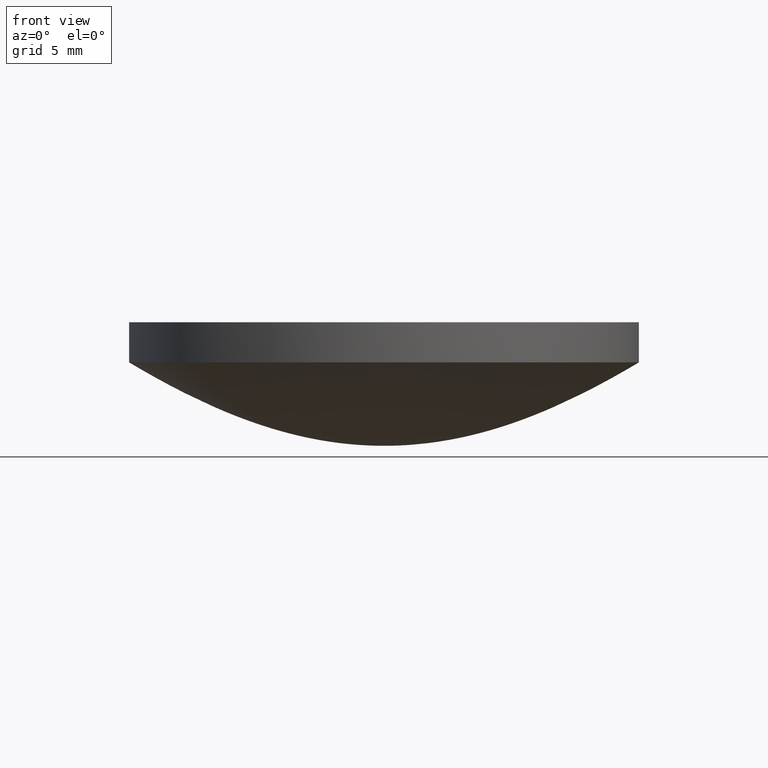
[diagram: clean part render]
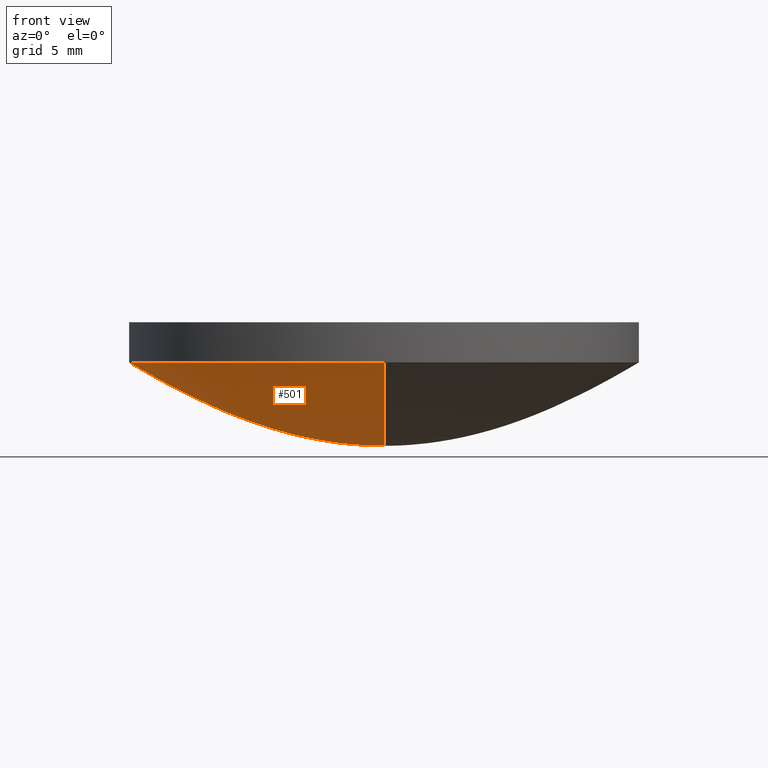
[diagram: same view with one face highlighted and labeled with its STEP entity id]
A machine part, front view. The second image highlights one B-rep face of the part: STEP entity #501.
In plain terms, the highlighted face is a freeform B-spline surface patch.
Its self-contained STEP definition (entity closure, byte-faithful):
#1 = CARTESIAN_POINT ( 'NONE',  ( 0.000000000000000000, 0.000000000000000000, 0.000000000000000000 ) ) ;
#6 = CARTESIAN_POINT ( 'NONE',  ( 0.000000000000000000, 8.299898597019639723, 1.861882940411679899 ) ) ;
#11 = CARTESIAN_POINT ( 'NONE',  ( 0.000000000000000000, 0.2648454722978469955, 0.000000000000000000 ) ) ;
#12 = DIRECTION ( 'NONE',  ( -1.000000000000000000, 0.000000000000000000, 0.000000000000000000 ) ) ;
#16 = CARTESIAN_POINT ( 'NONE',  ( 0.000000000000000000, 1.856001890975160107, 0.08818766913166510568 ) ) ;
#17 = CARTESIAN_POINT ( 'NONE',  ( 11.12995440244699985, -2.044539455041920056E-15, 3.246620217075189885 ) ) ;
#19 = CARTESIAN_POINT ( 'NONE',  ( 0.000000000000000000, 11.12995440244699985, 3.246620217075189885 ) ) ;
#21 = CARTESIAN_POINT ( 'NONE',  ( 0.000000000000000000, 8.299898597019639723, 1.861882940411679899 ) ) ;
#25 = CARTESIAN_POINT ( 'NONE',  ( 9.887190393330319793, -1.816247410162870148E-15, 2.604185921054619879 ) ) ;
#28 = CARTESIAN_POINT ( 'NONE',  ( -1.470296812679310086E-15, -12.00588458405299974, 3.743064987588899939 ) ) ;
#29 = B_SPLINE_CURVE_WITH_KNOTS ( 'NONE', 3,
 ( #217, #391, #61, #474, #229, #6, #225, #259, #354, #431, #55, #168, #348, #16, #183, #222, #512 ),
 .UNSPECIFIED., .F., .F.,
 ( 4, 1, 1, 1, 1, 1, 1, 1, 1, 1, 1, 1, 1, 1, 4 ),
 ( 0.000000000000000000, 0.1791640992132879917, 0.2231798939688300065, 0.3101165522484389814, 0.3530374157725050255, 0.4378003480766050060, 0.4796424168566389978, 0.5623418750578970116, 0.6031992644791219771, 0.6840973856314990220, 0.7241381173626499912, 0.8036349153197349660, 0.8430909815456679723, 0.9412735238857999898, 1.000000000000000000 ),
 .UNSPECIFIED. ) ;
#31 = CARTESIAN_POINT ( 'NONE',  ( 1.856001890975160107, -1.856001890975160107, 0.08818766913166510568 ) ) ;
#33 = CARTESIAN_POINT ( 'NONE',  ( -6.274022469804369679E-16, -5.123128133085059766, 0.7216723207957019826 ) ) ;
#36 = CIRCLE ( 'NONE', #268, 12.70000000000000284 ) ;
#37 = CARTESIAN_POINT ( 'NONE',  ( -4.417324537593410483, -4.417324537593410483, 0.5366860796835699610 ) ) ;
#39 = CARTESIAN_POINT ( 'NONE',  ( 0.000000000000000000, 5.123128133085059766, 0.7216723207957019826 ) ) ;
#41 = CARTESIAN_POINT ( 'NONE',  ( 3.533643029350660214, -6.491196937835459556E-16, 0.3426028526766399795 ) ) ;
#43 = CARTESIAN_POINT ( 'NONE',  ( -0.2648454722978469955, 1.621710799591140068E-17, 0.000000000000000000 ) ) ;
#44 = CARTESIAN_POINT ( 'NONE',  ( -1.210831606775240060E-15, -9.887190393330319793, 2.604185921054619879 ) ) ;
#55 = CARTESIAN_POINT ( 'NONE',  ( 0.000000000000000000, 4.417324537593409595, 0.5366860796835699610 ) ) ;
#57 = CARTESIAN_POINT ( 'NONE',  ( 0.000000000000000000, 0.000000000000000000, 0.000000000000000000 ) ) ;
#60 = CARTESIAN_POINT ( 'NONE',  ( -7.594569092104750396, 4.650332364774750375E-16, 1.566951937993940058 ) ) ;
#61 = CARTESIAN_POINT ( 'NONE',  ( 0.000000000000000000, 11.12995440244699985, 3.246620217075189885 ) ) ;
#63 = CARTESIAN_POINT ( 'NONE',  ( -1.124479035992150024E-15, -9.182068142219090845, 2.261185621592610051 ) ) ;
#65 = CARTESIAN_POINT ( 'NONE',  ( 9.887190393330319793, -9.887190393330330451, 2.604185921054619879 ) ) ;
#68 = CARTESIAN_POINT ( 'NONE',  ( 7.594569092104750396, -1.395099709432420083E-15, 1.566951937993940058 ) ) ;
#71 = CARTESIAN_POINT ( 'NONE',  ( -7.594569092104739738, 7.594569092104751284, 1.566951937993940058 ) ) ;
#73 = CARTESIAN_POINT ( 'NONE',  ( -5.123128133085059766, 3.137011234902189770E-16, 0.7216723207957019826 ) ) ;
#75 = CARTESIAN_POINT ( 'NONE',  ( -6.006328210829879666, 3.677815309010630601E-16, 0.9889388138680189622 ) ) ;
#77 = CARTESIAN_POINT ( 'NONE',  ( -2.827615954408220222, -2.827615954408220222, 0.2175848550245449986 ) ) ;
#81 = CARTESIAN_POINT ( 'NONE',  ( 5.123128133085059766, -9.411033704706559450E-16, 0.7216723207957019826 ) ) ;
#83 = VERTEX_POINT ( 'NONE', #523 ) ;
#84 = CARTESIAN_POINT ( 'NONE',  ( 3.533643029350660214, -3.533643029350660214, 0.3426028526766399240 ) ) ;
#89 = CARTESIAN_POINT ( 'NONE',  ( 0.000000000000000000, 0.000000000000000000, 0.000000000000000000 ) ) ;
#91 = CARTESIAN_POINT ( 'NONE',  ( -3.243421599182280136E-17, -0.2648454722978469955, 0.000000000000000000 ) ) ;
#92 = CARTESIAN_POINT ( 'NONE',  ( 1.734723475976807094E-15, -1.345898117247522881E-15, 4.156662013466060124 ) ) ;
#98 = CARTESIAN_POINT ( 'NONE',  ( -12.69999999999999929, 12.69999999999999929, 4.156662013466060124 ) ) ;
#100 = CARTESIAN_POINT ( 'NONE',  ( -6.711891333844019591, 6.711891333844019591, 1.230882758733029991 ) ) ;
#101 = EDGE_LOOP ( 'NONE', ( #254, #484, #121, #477 ) ) ;
#103 = CARTESIAN_POINT ( 'NONE',  ( -11.12995440244699985, -11.12995440244699985, 3.246620217075190773 ) ) ;
#105 = CARTESIAN_POINT ( 'NONE',  ( -11.12995440244699985, 11.12995440244699985, 3.246620217075190773 ) ) ;
#109 = CARTESIAN_POINT ( 'NONE',  ( -9.300664729549500750E-16, -7.594569092104750396, 1.566951937993940058 ) ) ;
#112 = CARTESIAN_POINT ( 'NONE',  ( 8.299898597019639723, 8.299898597019639723, 1.861882940411679899 ) ) ;
#114 = EDGE_CURVE ( 'NONE', #468, #83, #29, .T. ) ;
#115 = CARTESIAN_POINT ( 'NONE',  ( 2.827615954408220222, 2.827615954408220222, 0.2175848550245449986 ) ) ;
#117 = CARTESIAN_POINT ( 'NONE',  ( -0.9732602550666409336, 0.9732602550666409336, 0.01582297156970260271 ) ) ;
#119 = CARTESIAN_POINT ( 'NONE',  ( -4.417324537593410483, 4.417324537593410483, 0.5366860796835699610 ) ) ;
#121 = ORIENTED_EDGE ( 'NONE', *, *, #394, .T. ) ;
#122 = CARTESIAN_POINT ( 'NONE',  ( -0.9732602550666409336, -0.9732602550666409336, 0.01582297156970260271 ) ) ;
#124 = VERTEX_POINT ( 'NONE', #130 ) ;
#125 = CARTESIAN_POINT ( 'NONE',  ( 0.000000000000000000, 4.417324537593409595, 0.5366860796835699610 ) ) ;
#127 = CARTESIAN_POINT ( 'NONE',  ( -0.2648454722978469955, 0.2648454722978469955, 0.000000000000000000 ) ) ;
#129 = CARTESIAN_POINT ( 'NONE',  ( -3.243421599182280136E-17, -0.2648454722978469955, 0.000000000000000000 ) ) ;
#130 = CARTESIAN_POINT ( 'NONE',  ( -1.555301434917141588E-15, -12.70000000000000462, 4.156662013466060124 ) ) ;
#138 = DIRECTION ( 'NONE',  ( -0.000000000000000000, -0.000000000000000000, -1.000000000000000000 ) ) ;
#143 = CARTESIAN_POINT ( 'NONE',  ( 8.299898597019639723, -8.299898597019639723, 1.861882940411679899 ) ) ;
#145 = CARTESIAN_POINT ( 'NONE',  ( -9.887190393330319793, 9.887190393330319793, 2.604185921054619879 ) ) ;
#147 = CARTESIAN_POINT ( 'NONE',  ( -8.299898597019639723, 5.082222125043859669E-16, 1.861882940411679899 ) ) ;
#150 = CARTESIAN_POINT ( 'NONE',  ( 11.12995440244710110, 11.12995440244699985, 3.246620217075190773 ) ) ;
#153 = CARTESIAN_POINT ( 'NONE',  ( -7.594569092104751284, -7.594569092104739738, 1.566951937993940058 ) ) ;
#155 = CARTESIAN_POINT ( 'NONE',  ( 1.856001890975160107, 1.856001890975160107, 0.08818766913166510568 ) ) ;
#158 = CARTESIAN_POINT ( 'NONE',  ( 6.711891333844019591, -1.232954435732540021E-15, 1.230882758733029991 ) ) ;
#161 = CARTESIAN_POINT ( 'NONE',  ( -3.533643029350660214, 3.533643029350660214, 0.3426028526766399240 ) ) ;
#163 = CARTESIAN_POINT ( 'NONE',  ( -7.355630618021261203E-16, -6.006328210829879666, 0.9889388138680189622 ) ) ;
#167 = CARTESIAN_POINT ( 'NONE',  ( -2.272946774994159840E-16, -1.856001890975160107, 0.08818766913166510568 ) ) ;
#168 = CARTESIAN_POINT ( 'NONE',  ( 0.000000000000000000, 3.533643029350660214, 0.3426028526766399795 ) ) ;
#169 = CARTESIAN_POINT ( 'NONE',  ( 0.2648454722978469955, -4.865132398773410035E-17, 0.000000000000000000 ) ) ;
#170 = CARTESIAN_POINT ( 'NONE',  ( -12.70000000000000107, 6.671230152170136933E-16, 4.156662013466060124 ) ) ;
#175 = CARTESIAN_POINT ( 'NONE',  ( -3.851859888774471706E-31, 12.70000000000000284, 4.156662013466060124 ) ) ;
#183 = CARTESIAN_POINT ( 'NONE',  ( 0.000000000000000000, 0.9732602550666410446, 0.01582297156970259924 ) ) ;
#186 = CARTESIAN_POINT ( 'NONE',  ( -12.00588458405299974, 7.351484063396529724E-16, 3.743064987588899939 ) ) ;
#188 = CARTESIAN_POINT ( 'NONE',  ( -11.12995440244699985, 6.815131516806389996E-16, 3.246620217075189885 ) ) ;
#190 = CARTESIAN_POINT ( 'NONE',  ( 0.000000000000000000, 12.00588458405299974, 3.743064987588899939 ) ) ;
#193 = CARTESIAN_POINT ( 'NONE',  ( 12.00588458405299974, -2.205445219018960396E-15, 3.743064987588899939 ) ) ;
#196 = CARTESIAN_POINT ( 'NONE',  ( 12.69999999999999929, 12.69999999999999929, 4.156662013466060124 ) ) ;
#198 = CARTESIAN_POINT ( 'NONE',  ( 1.856001890975160107, -3.409420162491239760E-16, 0.08818766913166510568 ) ) ;
#201 = CARTESIAN_POINT ( 'NONE',  ( 5.123128133085059766, -5.123128133085059766, 0.7216723207957019826 ) ) ;
#204 = CARTESIAN_POINT ( 'NONE',  ( -2.272946774994159840E-16, -1.856001890975160107, 0.08818766913166510568 ) ) ;
#206 = CARTESIAN_POINT ( 'NONE',  ( -5.123128133085059766, 5.123128133085059766, 0.7216723207957019826 ) ) ;
#208 = CARTESIAN_POINT ( 'NONE',  ( -6.006328210829880554, -6.006328210829880554, 0.9889388138680190732 ) ) ;
#211 = CARTESIAN_POINT ( 'NONE',  ( 0.000000000000000000, 0.000000000000000000, 0.000000000000000000 ) ) ;
#212 = CARTESIAN_POINT ( 'NONE',  ( -7.355630618021261203E-16, -6.006328210829879666, 0.9889388138680189622 ) ) ;
#217 = CARTESIAN_POINT ( 'NONE',  ( -3.851859888774471706E-31, 12.70000000000000284, 4.156662013466060124 ) ) ;
#221 = CARTESIAN_POINT ( 'NONE',  ( 0.000000000000000000, 12.69999999999999929, 4.156662013466060124 ) ) ;
#222 = CARTESIAN_POINT ( 'NONE',  ( 0.000000000000000000, 0.2648454722978469955, 0.000000000000000000 ) ) ;
#223 = CARTESIAN_POINT ( 'NONE',  ( 0.000000000000000000, 0.000000000000000000, 0.000000000000000000 ) ) ;
#224 = CARTESIAN_POINT ( 'NONE',  ( -8.219696238216940375E-16, -6.711891333844019591, 1.230882758733029991 ) ) ;
#225 = CARTESIAN_POINT ( 'NONE',  ( 0.000000000000000000, 7.594569092104750396, 1.566951937993940058 ) ) ;
#226 = B_SPLINE_CURVE_WITH_KNOTS ( 'NONE', 3,
 ( #519, #480, #349, #44, #473, #317, #390, #224, #212, #436, #511, #312, #357, #167, #385, #129, #89 ),
 .UNSPECIFIED., .F., .F.,
 ( 4, 1, 1, 1, 1, 1, 1, 1, 1, 1, 1, 1, 1, 1, 4 ),
 ( 0.000000000000000000, 0.1791640992132879917, 0.2231798939688300065, 0.3101165522484389814, 0.3530374157725050255, 0.4378003480766050060, 0.4796424168566389978, 0.5623418750578970116, 0.6031992644791219771, 0.6840973856314990220, 0.7241381173626499912, 0.8036349153197349660, 0.8430909815456679723, 0.9412735238857999898, 1.000000000000000000 ),
 .UNSPECIFIED. ) ;
#228 = CARTESIAN_POINT ( 'NONE',  ( 12.69999999999999929, -2.332952152375710015E-15, 4.156662013466060124 ) ) ;
#229 = CARTESIAN_POINT ( 'NONE',  ( 0.000000000000000000, 9.182068142219090845, 2.261185621592610051 ) ) ;
#232 = CARTESIAN_POINT ( 'NONE',  ( -8.299898597019639723, 8.299898597019639723, 1.861882940411679899 ) ) ;
#235 = CARTESIAN_POINT ( 'NONE',  ( 0.000000000000000000, 9.182068142219090845, 2.261185621592610051 ) ) ;
#238 = CARTESIAN_POINT ( 'NONE',  ( 0.000000000000000000, 9.887190393330319793, 2.604185921054619879 ) ) ;
#240 = CARTESIAN_POINT ( 'NONE',  ( 12.69999999999999929, -12.69999999999999929, 4.156662013466060124 ) ) ;
#242 = CARTESIAN_POINT ( 'NONE',  ( 0.000000000000000000, 1.856001890975160107, 0.08818766913166510568 ) ) ;
#244 = CARTESIAN_POINT ( 'NONE',  ( 5.123128133085059766, 5.123128133085059766, 0.7216723207957019826 ) ) ;
#246 = CARTESIAN_POINT ( 'NONE',  ( 0.000000000000000000, 2.827615954408219778, 0.2175848550245449986 ) ) ;
#249 = CARTESIAN_POINT ( 'NONE',  ( -8.219696238216940375E-16, -6.711891333844019591, 1.230882758733029991 ) ) ;
#252 = CARTESIAN_POINT ( 'NONE',  ( 0.000000000000000000, 2.827615954408219778, 0.2175848550245449986 ) ) ;
#254 = ORIENTED_EDGE ( 'NONE', *, *, #403, .F. ) ;
#257 = CARTESIAN_POINT ( 'NONE',  ( 0.000000000000000000, 0.000000000000000000, 0.000000000000000000 ) ) ;
#259 = CARTESIAN_POINT ( 'NONE',  ( 0.000000000000000000, 6.711891333844019591, 1.230882758733029991 ) ) ;
#262 = VERTEX_POINT ( 'NONE', #170 ) ;
#263 = CARTESIAN_POINT ( 'NONE',  ( 0.9732602550666409336, 0.9732602550666409336, 0.01582297156970260271 ) ) ;
#264 = FACE_OUTER_BOUND ( 'NONE', #101, .T. ) ;
#268 = AXIS2_PLACEMENT_3D ( 'NONE', #353, #138, #12 ) ;
#269 = CARTESIAN_POINT ( 'NONE',  ( -12.69999999999999929, 7.776507174585690191E-16, 4.156662013466060124 ) ) ;
#271 = CARTESIAN_POINT ( 'NONE',  ( 12.00588458405300152, -12.00588458405300152, 3.743064987588899939 ) ) ;
#274 = CARTESIAN_POINT ( 'NONE',  ( 0.000000000000000000, 9.887190393330319793, 2.604185921054619879 ) ) ;
#278 = CARTESIAN_POINT ( 'NONE',  ( -9.887190393330330451, -9.887190393330319793, 2.604185921054619879 ) ) ;
#281 = CARTESIAN_POINT ( 'NONE',  ( 9.182068142219090845, -9.182068142219090845, 2.261185621592610051 ) ) ;
#284 = CARTESIAN_POINT ( 'NONE',  ( -9.182068142219090845, 5.622395179960750118E-16, 2.261185621592610051 ) ) ;
#286 = CARTESIAN_POINT ( 'NONE',  ( 0.000000000000000000, 6.006328210829879666, 0.9889388138680189622 ) ) ;
#288 = CARTESIAN_POINT ( 'NONE',  ( -0.9732602550666410446, 5.959500280523489629E-17, 0.01582297156970259924 ) ) ;
#290 = CARTESIAN_POINT ( 'NONE',  ( 0.000000000000000000, 3.533643029350660214, 0.3426028526766399795 ) ) ;
#292 = CARTESIAN_POINT ( 'NONE',  ( 4.417324537593410483, 4.417324537593410483, 0.5366860796835699610 ) ) ;
#297 =( BOUNDED_SURFACE ( )  B_SPLINE_SURFACE ( 3, 2, ( 
 ( #221, #98, #269, #401, #361, #240, #228, #196, #487 ),
 ( #399, #489, #186, #365, #28, #271, #193, #330, #190 ),
 ( #19, #105, #188, #103, #408, #369, #17, #150, #527 ),
 ( #238, #145, #323, #278, #447, #65, #25, #529, #274 ),
 ( #371, #450, #284, #531, #63, #281, #405, #495, #235 ),
 ( #21, #232, #147, #327, #492, #143, #359, #112, #533 ),
 ( #320, #71, #60, #153, #109, #454, #68, #524, #411 ),
 ( #483, #100, #442, #445, #249, #458, #158, #298, #375 ),
 ( #286, #373, #75, #208, #163, #504, #535, #421, #337 ),
 ( #39, #206, #73, #541, #33, #201, #81, #244, #537 ),
 ( #502, #119, #379, #37, #335, #332, #381, #292, #125 ),
 ( #342, #161, #506, #466, #377, #84, #41, #544, #290 ),
 ( #252, #460, #497, #77, #415, #423, #339, #115, #246 ),
 ( #242, #456, #413, #418, #204, #31, #198, #155, #539 ),
 ( #499, #117, #288, #122, #463, #305, #439, #263, #393 ),
 ( #429, #127, #43, #425, #91, #384, #169, #352, #11 ),
 ( #300, #470, #223, #386, #211, #57, #257, #389, #1 ) ),
 .UNSPECIFIED., .F., .T., .F. ) 
 B_SPLINE_SURFACE_WITH_KNOTS ( ( 4, 1, 1, 1, 1, 1, 1, 1, 1, 1, 1, 1, 1, 1, 4 ),
 ( 3, 2, 2, 2, 3 ),
 ( 0.000000000000000000, 0.1791640992132879917, 0.2231798939688300065, 0.3101165522484389814, 0.3530374157725050255, 0.4378003480766050060, 0.4796424168566389978, 0.5623418750578970116, 0.6031992644791219771, 0.6840973856314990220, 0.7241381173626499912, 0.8036349153197349660, 0.8430909815456679723, 0.9412735238857999898, 1.000000000000000000 ),
 ( 0.000000000000000000, 90.00000000000000000, 180.0000000000000000, 270.0000000000000000, 360.0000000000000000 ),
 .UNSPECIFIED. ) 
 GEOMETRIC_REPRESENTATION_ITEM ( )  RATIONAL_B_SPLINE_SURFACE ( (
 ( 1.000000000000000000, 0.7071067811865480168, 1.000000000000000000, 0.7071067811865480168, 1.000000000000000000, 0.7071067811865480168, 1.000000000000000000, 0.7071067811865480168, 1.000000000000000000),
 ( 1.000000000000000000, 0.7071067811865480168, 1.000000000000000000, 0.7071067811865480168, 1.000000000000000000, 0.7071067811865480168, 1.000000000000000000, 0.7071067811865480168, 1.000000000000000000),
 ( 1.000000000000000000, 0.7071067811865480168, 1.000000000000000000, 0.7071067811865480168, 1.000000000000000000, 0.7071067811865480168, 1.000000000000000000, 0.7071067811865480168, 1.000000000000000000),
 ( 1.000000000000000000, 0.7071067811865480168, 1.000000000000000000, 0.7071067811865480168, 1.000000000000000000, 0.7071067811865480168, 1.000000000000000000, 0.7071067811865480168, 1.000000000000000000),
 ( 1.000000000000000000, 0.7071067811865480168, 1.000000000000000000, 0.7071067811865480168, 1.000000000000000000, 0.7071067811865480168, 1.000000000000000000, 0.7071067811865480168, 1.000000000000000000),
 ( 1.000000000000000000, 0.7071067811865480168, 1.000000000000000000, 0.7071067811865480168, 1.000000000000000000, 0.7071067811865480168, 1.000000000000000000, 0.7071067811865480168, 1.000000000000000000),
 ( 1.000000000000000000, 0.7071067811865480168, 1.000000000000000000, 0.7071067811865480168, 1.000000000000000000, 0.7071067811865480168, 1.000000000000000000, 0.7071067811865480168, 1.000000000000000000),
 ( 1.000000000000000000, 0.7071067811865480168, 1.000000000000000000, 0.7071067811865480168, 1.000000000000000000, 0.7071067811865480168, 1.000000000000000000, 0.7071067811865480168, 1.000000000000000000),
 ( 1.000000000000000000, 0.7071067811865480168, 1.000000000000000000, 0.7071067811865480168, 1.000000000000000000, 0.7071067811865480168, 1.000000000000000000, 0.7071067811865480168, 1.000000000000000000),
 ( 1.000000000000000000, 0.7071067811865480168, 1.000000000000000000, 0.7071067811865480168, 1.000000000000000000, 0.7071067811865480168, 1.000000000000000000, 0.7071067811865480168, 1.000000000000000000),
 ( 1.000000000000000000, 0.7071067811865480168, 1.000000000000000000, 0.7071067811865480168, 1.000000000000000000, 0.7071067811865480168, 1.000000000000000000, 0.7071067811865480168, 1.000000000000000000),
 ( 1.000000000000000000, 0.7071067811865480168, 1.000000000000000000, 0.7071067811865480168, 1.000000000000000000, 0.7071067811865480168, 1.000000000000000000, 0.7071067811865480168, 1.000000000000000000),
 ( 1.000000000000000000, 0.7071067811865480168, 1.000000000000000000, 0.7071067811865480168, 1.000000000000000000, 0.7071067811865480168, 1.000000000000000000, 0.7071067811865480168, 1.000000000000000000),
 ( 1.000000000000000000, 0.7071067811865480168, 1.000000000000000000, 0.7071067811865480168, 1.000000000000000000, 0.7071067811865480168, 1.000000000000000000, 0.7071067811865480168, 1.000000000000000000),
 ( 1.000000000000000000, 0.7071067811865480168, 1.000000000000000000, 0.7071067811865480168, 1.000000000000000000, 0.7071067811865480168, 1.000000000000000000, 0.7071067811865480168, 1.000000000000000000),
 ( 1.000000000000000000, 0.7071067811865480168, 1.000000000000000000, 0.7071067811865480168, 1.000000000000000000, 0.7071067811865480168, 1.000000000000000000, 0.7071067811865480168, 1.000000000000000000),
 ( 1.000000000000000000, 0.7071067811865480168, 1.000000000000000000, 0.7071067811865480168, 1.000000000000000000, 0.7071067811865480168, 1.000000000000000000, 0.7071067811865480168, 1.000000000000000000) ) ) 
 REPRESENTATION_ITEM ( '' )  SURFACE ( )  );
#298 = CARTESIAN_POINT ( 'NONE',  ( 6.711891333844019591, 6.711891333844019591, 1.230882758733029991 ) ) ;
#300 = CARTESIAN_POINT ( 'NONE',  ( 0.000000000000000000, 0.000000000000000000, 0.000000000000000000 ) ) ;
#305 = CARTESIAN_POINT ( 'NONE',  ( 0.9732602550666409336, -0.9732602550666409336, 0.01582297156970260271 ) ) ;
#312 = CARTESIAN_POINT ( 'NONE',  ( -4.327464625223639869E-16, -3.533643029350660214, 0.3426028526766399795 ) ) ;
#315 = EDGE_CURVE ( 'NONE', #124, #262, #326, .T. ) ;
#317 = CARTESIAN_POINT ( 'NONE',  ( -1.016444425008770159E-15, -8.299898597019639723, 1.861882940411679899 ) ) ;
#320 = CARTESIAN_POINT ( 'NONE',  ( 0.000000000000000000, 7.594569092104750396, 1.566951937993940058 ) ) ;
#323 = CARTESIAN_POINT ( 'NONE',  ( -9.887190393330319793, 6.054158033876220021E-16, 2.604185921054619879 ) ) ;
#326 = CIRCLE ( 'NONE', #507, 12.70000000000000284 ) ;
#327 = CARTESIAN_POINT ( 'NONE',  ( -8.299898597019639723, -8.299898597019639723, 1.861882940411679899 ) ) ;
#330 = CARTESIAN_POINT ( 'NONE',  ( 12.00588458405300152, 12.00588458405300152, 3.743064987588899939 ) ) ;
#332 = CARTESIAN_POINT ( 'NONE',  ( 4.417324537593410483, -4.417324537593410483, 0.5366860796835699610 ) ) ;
#335 = CARTESIAN_POINT ( 'NONE',  ( -5.409662355758830350E-16, -4.417324537593409595, 0.5366860796835699610 ) ) ;
#337 = CARTESIAN_POINT ( 'NONE',  ( 0.000000000000000000, 6.006328210829879666, 0.9889388138680189622 ) ) ;
#339 = CARTESIAN_POINT ( 'NONE',  ( 2.827615954408219778, -5.194246241676019827E-16, 0.2175848550245449986 ) ) ;
#342 = CARTESIAN_POINT ( 'NONE',  ( 0.000000000000000000, 3.533643029350660214, 0.3426028526766399795 ) ) ;
#348 = CARTESIAN_POINT ( 'NONE',  ( 0.000000000000000000, 2.827615954408219778, 0.2175848550245449986 ) ) ;
#349 = CARTESIAN_POINT ( 'NONE',  ( -1.363026303361279971E-15, -11.12995440244699985, 3.246620217075189885 ) ) ;
#352 = CARTESIAN_POINT ( 'NONE',  ( 0.2648454722978469955, 0.2648454722978469955, 0.000000000000000000 ) ) ;
#353 = CARTESIAN_POINT ( 'NONE',  ( 1.734723475976807094E-15, -1.345898117247522881E-15, 4.156662013466060124 ) ) ;
#354 = CARTESIAN_POINT ( 'NONE',  ( 0.000000000000000000, 6.006328210829879666, 0.9889388138680189622 ) ) ;
#357 = CARTESIAN_POINT ( 'NONE',  ( -3.462830827784010095E-16, -2.827615954408219778, 0.2175848550245449986 ) ) ;
#359 = CARTESIAN_POINT ( 'NONE',  ( 8.299898597019639723, -1.524666637513159972E-15, 1.861882940411679899 ) ) ;
#361 = CARTESIAN_POINT ( 'NONE',  ( -1.555301434917140010E-15, -12.69999999999999929, 4.156662013466060124 ) ) ;
#365 = CARTESIAN_POINT ( 'NONE',  ( -12.00588458405300152, -12.00588458405300152, 3.743064987588899939 ) ) ;
#369 = CARTESIAN_POINT ( 'NONE',  ( 11.12995440244699985, -11.12995440244710110, 3.246620217075190773 ) ) ;
#371 = CARTESIAN_POINT ( 'NONE',  ( 0.000000000000000000, 9.182068142219090845, 2.261185621592610051 ) ) ;
#373 = CARTESIAN_POINT ( 'NONE',  ( -6.006328210829880554, 6.006328210829880554, 0.9889388138680190732 ) ) ;
#375 = CARTESIAN_POINT ( 'NONE',  ( 0.000000000000000000, 6.711891333844019591, 1.230882758733029991 ) ) ;
#377 = CARTESIAN_POINT ( 'NONE',  ( -4.327464625223639869E-16, -3.533643029350660214, 0.3426028526766399795 ) ) ;
#379 = CARTESIAN_POINT ( 'NONE',  ( -4.417324537593409595, 2.704831177879420105E-16, 0.5366860796835699610 ) ) ;
#381 = CARTESIAN_POINT ( 'NONE',  ( 4.417324537593409595, -8.114493533638249962E-16, 0.5366860796835699610 ) ) ;
#384 = CARTESIAN_POINT ( 'NONE',  ( 0.2648454722978469955, -0.2648454722978469955, 0.000000000000000000 ) ) ;
#385 = CARTESIAN_POINT ( 'NONE',  ( -1.191900056104700145E-16, -0.9732602550666410446, 0.01582297156970259924 ) ) ;
#386 = CARTESIAN_POINT ( 'NONE',  ( 0.000000000000000000, 0.000000000000000000, 0.000000000000000000 ) ) ;
#389 = CARTESIAN_POINT ( 'NONE',  ( 0.000000000000000000, 0.000000000000000000, 0.000000000000000000 ) ) ;
#390 = CARTESIAN_POINT ( 'NONE',  ( -9.300664729549500750E-16, -7.594569092104750396, 1.566951937993940058 ) ) ;
#391 = CARTESIAN_POINT ( 'NONE',  ( 0.000000000000000000, 12.00588458405299974, 3.743064987588899939 ) ) ;
#393 = CARTESIAN_POINT ( 'NONE',  ( 0.000000000000000000, 0.9732602550666410446, 0.01582297156970259924 ) ) ;
#394 = EDGE_CURVE ( 'NONE', #262, #468, #36, .T. ) ;
#395 = DIRECTION ( 'NONE',  ( -1.000000000000000000, 0.000000000000000000, 0.000000000000000000 ) ) ;
#399 = CARTESIAN_POINT ( 'NONE',  ( 0.000000000000000000, 12.00588458405299974, 3.743064987588899939 ) ) ;
#401 = CARTESIAN_POINT ( 'NONE',  ( -12.69999999999999929, -12.69999999999999929, 4.156662013466060124 ) ) ;
#403 = EDGE_CURVE ( 'NONE', #124, #83, #226, .T. ) ;
#405 = CARTESIAN_POINT ( 'NONE',  ( 9.182068142219090845, -1.686718553988220006E-15, 2.261185621592610051 ) ) ;
#408 = CARTESIAN_POINT ( 'NONE',  ( -1.363026303361279971E-15, -11.12995440244699985, 3.246620217075189885 ) ) ;
#411 = CARTESIAN_POINT ( 'NONE',  ( 0.000000000000000000, 7.594569092104750396, 1.566951937993940058 ) ) ;
#413 = CARTESIAN_POINT ( 'NONE',  ( -1.856001890975160107, 1.136473387497079920E-16, 0.08818766913166510568 ) ) ;
#415 = CARTESIAN_POINT ( 'NONE',  ( -3.462830827784010095E-16, -2.827615954408219778, 0.2175848550245449986 ) ) ;
#418 = CARTESIAN_POINT ( 'NONE',  ( -1.856001890975160107, -1.856001890975160107, 0.08818766913166510568 ) ) ;
#421 = CARTESIAN_POINT ( 'NONE',  ( 6.006328210829880554, 6.006328210829870784, 0.9889388138680190732 ) ) ;
#423 = CARTESIAN_POINT ( 'NONE',  ( 2.827615954408220222, -2.827615954408220222, 0.2175848550245449986 ) ) ;
#425 = CARTESIAN_POINT ( 'NONE',  ( -0.2648454722978469955, -0.2648454722978469955, 0.000000000000000000 ) ) ;
#429 = CARTESIAN_POINT ( 'NONE',  ( 0.000000000000000000, 0.2648454722978469955, 0.000000000000000000 ) ) ;
#431 = CARTESIAN_POINT ( 'NONE',  ( 0.000000000000000000, 5.123128133085059766, 0.7216723207957019826 ) ) ;
#432 = DIRECTION ( 'NONE',  ( -0.000000000000000000, -0.000000000000000000, -1.000000000000000000 ) ) ;
#436 = CARTESIAN_POINT ( 'NONE',  ( -6.274022469804369679E-16, -5.123128133085059766, 0.7216723207957019826 ) ) ;
#439 = CARTESIAN_POINT ( 'NONE',  ( 0.9732602550666410446, -1.787850084157050094E-16, 0.01582297156970259924 ) ) ;
#442 = CARTESIAN_POINT ( 'NONE',  ( -6.711891333844019591, 4.109848119108470188E-16, 1.230882758733029991 ) ) ;
#445 = CARTESIAN_POINT ( 'NONE',  ( -6.711891333844019591, -6.711891333844019591, 1.230882758733029991 ) ) ;
#447 = CARTESIAN_POINT ( 'NONE',  ( -1.210831606775240060E-15, -9.887190393330319793, 2.604185921054619879 ) ) ;
#450 = CARTESIAN_POINT ( 'NONE',  ( -9.182068142219090845, 9.182068142219090845, 2.261185621592610051 ) ) ;
#454 = CARTESIAN_POINT ( 'NONE',  ( 7.594569092104739738, -7.594569092104751284, 1.566951937993940058 ) ) ;
#456 = CARTESIAN_POINT ( 'NONE',  ( -1.856001890975160107, 1.856001890975160107, 0.08818766913166510568 ) ) ;
#458 = CARTESIAN_POINT ( 'NONE',  ( 6.711891333844019591, -6.711891333844019591, 1.230882758733029991 ) ) ;
#460 = CARTESIAN_POINT ( 'NONE',  ( -2.827615954408220222, 2.827615954408220222, 0.2175848550245449986 ) ) ;
#463 = CARTESIAN_POINT ( 'NONE',  ( -1.191900056104700145E-16, -0.9732602550666410446, 0.01582297156970259924 ) ) ;
#466 = CARTESIAN_POINT ( 'NONE',  ( -3.533643029350660214, -3.533643029350660214, 0.3426028526766399240 ) ) ;
#468 = VERTEX_POINT ( 'NONE', #175 ) ;
#470 = CARTESIAN_POINT ( 'NONE',  ( 0.000000000000000000, 0.000000000000000000, 0.000000000000000000 ) ) ;
#473 = CARTESIAN_POINT ( 'NONE',  ( -1.124479035992150024E-15, -9.182068142219090845, 2.261185621592610051 ) ) ;
#474 = CARTESIAN_POINT ( 'NONE',  ( 0.000000000000000000, 9.887190393330319793, 2.604185921054619879 ) ) ;
#477 = ORIENTED_EDGE ( 'NONE', *, *, #114, .T. ) ;
#480 = CARTESIAN_POINT ( 'NONE',  ( -1.470296812679310086E-15, -12.00588458405299974, 3.743064987588899939 ) ) ;
#483 = CARTESIAN_POINT ( 'NONE',  ( 0.000000000000000000, 6.711891333844019591, 1.230882758733029991 ) ) ;
#484 = ORIENTED_EDGE ( 'NONE', *, *, #315, .T. ) ;
#487 = CARTESIAN_POINT ( 'NONE',  ( 0.000000000000000000, 12.69999999999999929, 4.156662013466060124 ) ) ;
#489 = CARTESIAN_POINT ( 'NONE',  ( -12.00588458405300152, 12.00588458405300152, 3.743064987588899939 ) ) ;
#492 = CARTESIAN_POINT ( 'NONE',  ( -1.016444425008770159E-15, -8.299898597019639723, 1.861882940411679899 ) ) ;
#495 = CARTESIAN_POINT ( 'NONE',  ( 9.182068142219090845, 9.182068142219090845, 2.261185621592610051 ) ) ;
#497 = CARTESIAN_POINT ( 'NONE',  ( -2.827615954408219778, 1.731415413892010225E-16, 0.2175848550245449986 ) ) ;
#499 = CARTESIAN_POINT ( 'NONE',  ( 0.000000000000000000, 0.9732602550666410446, 0.01582297156970259924 ) ) ;
#501 = ADVANCED_FACE ( 'NONE', ( #264 ), #297, .T. ) ;
#502 = CARTESIAN_POINT ( 'NONE',  ( 0.000000000000000000, 4.417324537593409595, 0.5366860796835699610 ) ) ;
#504 = CARTESIAN_POINT ( 'NONE',  ( 6.006328210829880554, -6.006328210829880554, 0.9889388138680190732 ) ) ;
#506 = CARTESIAN_POINT ( 'NONE',  ( -3.533643029350660214, 2.163732312611819934E-16, 0.3426028526766399795 ) ) ;
#507 = AXIS2_PLACEMENT_3D ( 'NONE', #92, #432, #395 ) ;
#511 = CARTESIAN_POINT ( 'NONE',  ( -5.409662355758830350E-16, -4.417324537593409595, 0.5366860796835699610 ) ) ;
#512 = CARTESIAN_POINT ( 'NONE',  ( 0.000000000000000000, 0.000000000000000000, 0.000000000000000000 ) ) ;
#519 = CARTESIAN_POINT ( 'NONE',  ( -1.555301434917141588E-15, -12.70000000000000462, 4.156662013466060124 ) ) ;
#523 = CARTESIAN_POINT ( 'NONE',  ( 0.000000000000000000, 0.000000000000000000, 0.000000000000000000 ) ) ;
#524 = CARTESIAN_POINT ( 'NONE',  ( 7.594569092104751284, 7.594569092104739738, 1.566951937993940058 ) ) ;
#527 = CARTESIAN_POINT ( 'NONE',  ( 0.000000000000000000, 11.12995440244699985, 3.246620217075189885 ) ) ;
#529 = CARTESIAN_POINT ( 'NONE',  ( 9.887190393330330451, 9.887190393330319793, 2.604185921054619879 ) ) ;
#531 = CARTESIAN_POINT ( 'NONE',  ( -9.182068142219090845, -9.182068142219090845, 2.261185621592610051 ) ) ;
#533 = CARTESIAN_POINT ( 'NONE',  ( 0.000000000000000000, 8.299898597019639723, 1.861882940411679899 ) ) ;
#535 = CARTESIAN_POINT ( 'NONE',  ( 6.006328210829879666, -1.103344592703189920E-15, 0.9889388138680189622 ) ) ;
#537 = CARTESIAN_POINT ( 'NONE',  ( 0.000000000000000000, 5.123128133085059766, 0.7216723207957019826 ) ) ;
#539 = CARTESIAN_POINT ( 'NONE',  ( 0.000000000000000000, 1.856001890975160107, 0.08818766913166510568 ) ) ;
#541 = CARTESIAN_POINT ( 'NONE',  ( -5.123128133085059766, -5.123128133085059766, 0.7216723207957019826 ) ) ;
#544 = CARTESIAN_POINT ( 'NONE',  ( 3.533643029350660214, 3.533643029350660214, 0.3426028526766399240 ) ) ;